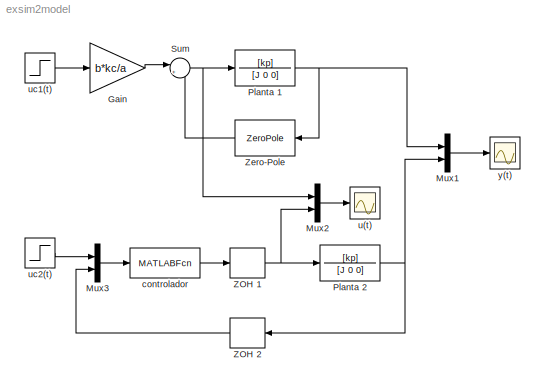
MODEL exsim2model
KIND model
BLOCK [Gain] Gain
  Gain = b*kc/a
  OutDataTypeMode = Inherit via internal rule
  OutDataTypeStr = Inherit: Inherit via internal rule
  ParamDataTypeStr = Inherit: Inherit via internal rule
  ParameterDataTypeMode = Inherit via internal rule
  SaturateOnIntegerOverflow = off
BLOCK [Mux] Mux1
  DisplayOption = bar
  Inputs = 2
  Ports = [2, 1]
BLOCK [Mux] Mux2
  DisplayOption = bar
  Inputs = 2
  Ports = [2, 1]
BLOCK [Mux] Mux3
  DisplayOption = bar
  Inputs = 2
  Ports = [2, 1]
BLOCK [TransferFcn] Planta 1
  Denominator = [J 0 0]
  Numerator = [kp]
BLOCK [TransferFcn] Planta 2
  Denominator = [J 0 0]
  Numerator = [kp]
BLOCK [Sum] Sum
  IconShape = round
  InputSameDT = off
  Inputs = |+-
  OutDataTypeMode = Inherit via internal rule
  OutDataTypeStr = Inherit: Inherit via internal rule
  Ports = [2, 1]
  SaturateOnIntegerOverflow = off
BLOCK [ZeroOrderHold] ZOH 1
  SampleTime = T
BLOCK [ZeroOrderHold] ZOH 2
  SampleTime = T
BLOCK [ZeroPole] Zero-Pole
  Gain = [kc]
  Poles = [-a]
  Zeros = [-b]
BLOCK [MATLABFcn] controlador
  MATLABFcn = controller
  OutputDimensions = 1
  Ports = [1, 1]
BLOCK [Scope] u(t)
  DataFormat = Array
  Decimation = 1
  Grid = on
  LimitDataPoints = off
  MaxDataPoints = 5000
  Ports = [1]
  SampleInput = off
  SampleTime = -1
  SaveName = u
  SaveToWorkspace = on
  TickLabels = OneTimeTick
  TimeRange = auto
  YMax = 0.60086
  YMin = -0.40773
  ZoomMode = on
BLOCK [Step] uc1(t)
  SampleTime = 0
  Time = 0
BLOCK [Step] uc2(t)
  SampleTime = T
  Time = 0
BLOCK [Scope] y(t)
  DataFormat = Array
  Decimation = 1
  Grid = on
  LimitDataPoints = off
  MaxDataPoints = 5000
  Ports = [1]
  SampleInput = off
  SampleTime = -1
  SaveName = y
  SaveToWorkspace = on
  TickLabels = OneTimeTick
  TimeRange = auto
  YMax = 1.43486
  YMin = -0.15943
  ZoomMode = on
LINE Gain:1 -> Sum:1
LINE Mux1:1 -> y(t):1
LINE Mux2:1 -> u(t):1
LINE Mux3:1 -> controlador:1
NET Planta 1:1 -> Mux1:1, Zero-Pole:1
NET Planta 2:1 -> Mux1:2, ZOH 2:1
NET Sum:1 -> Mux2:1, Planta 1:1
NET ZOH 1:1 -> Mux2:2, Planta 2:1
LINE ZOH 2:1 -> Mux3:2
LINE Zero-Pole:1 -> Sum:2
LINE controlador:1 -> ZOH 1:1
LINE uc1(t):1 -> Gain:1
LINE uc2(t):1 -> Mux3:1
note: NET lines group one-source signal fan-out (src -> all destinations, sorted); 1:1 wires keep LINE
